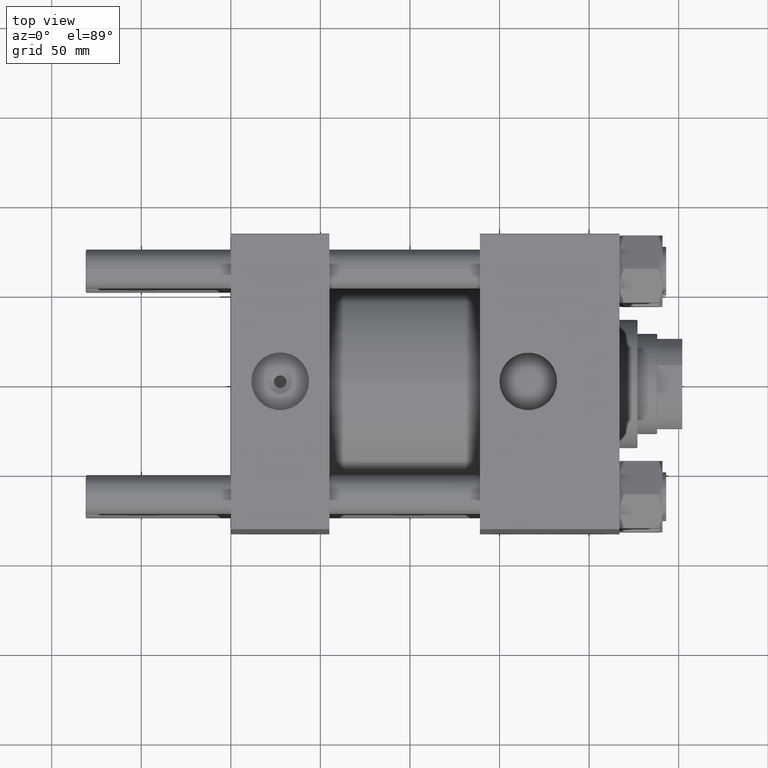
[diagram: clean part render]
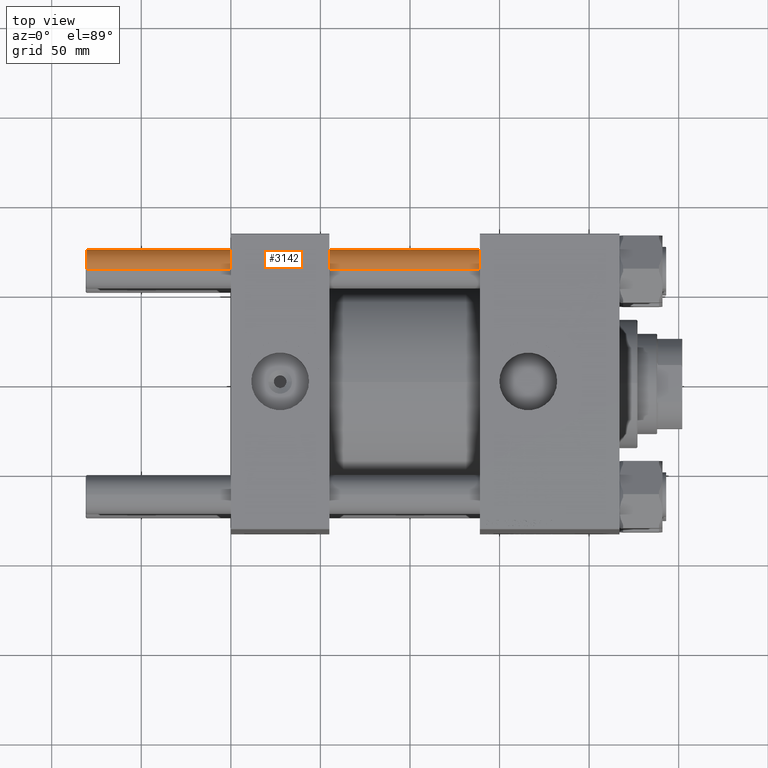
[diagram: same view with one face highlighted and labeled with its STEP entity id]
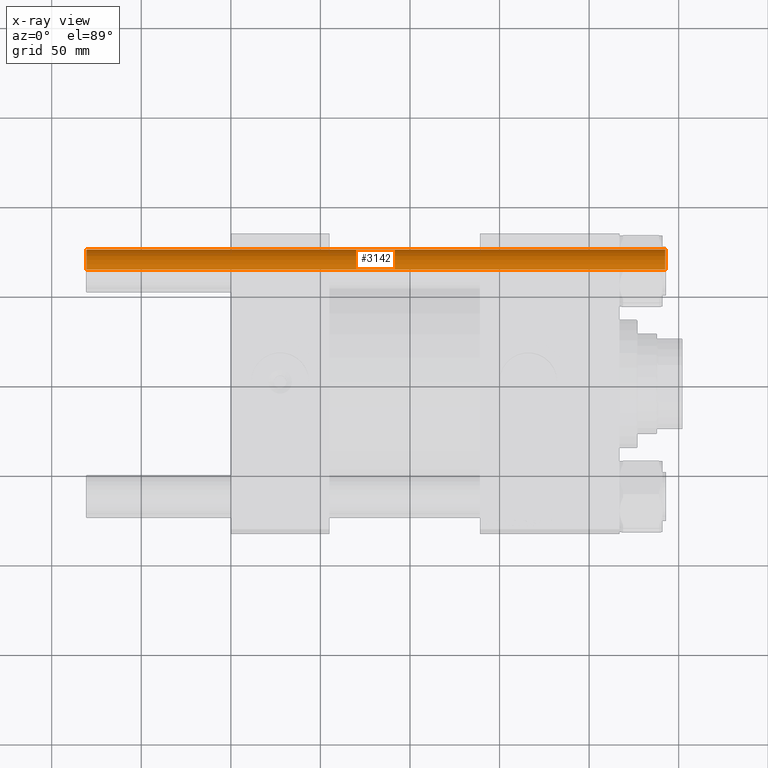
[diagram: x-ray of the same camera — body ghosted, the highlighted face saturated]
A machine part, top view. The second image highlights one B-rep face of the part: STEP entity #3142.
The next image is the same camera in x-ray: the body ghosted, the highlighted face saturated — about 0% of this face is hidden behind the body in this view.
In plain terms, the highlighted cylindrical surface (edge-blend (fillet) strip) has radius 11 mm, axis along (-1, -0, -0).
Its self-contained STEP definition (entity closure, byte-faithful):
#146 = CARTESIAN_POINT ( 'NONE',  ( 11.00000000000000000, 1.347111479062088405E-15, 323.5000000000000000 ) ) ;
#172 = AXIS2_PLACEMENT_3D ( 'NONE', #20867, #35869, #12994 ) ;
#1778 = VERTEX_POINT ( 'NONE', #9391 ) ;
#1916 = CARTESIAN_POINT ( 'NONE',  ( 11.00000000000000000, 1.347111479062088405E-15, 324.0000000000000000 ) ) ;
#2547 = EDGE_LOOP ( 'NONE', ( #38526, #26725, #6122, #39439 ) ) ;
#3142 = ADVANCED_FACE ( 'NONE', ( #35617 ), #9432, .T. ) ;
#6122 = ORIENTED_EDGE ( 'NONE', *, *, #50282, .T. ) ;
#6340 = DIRECTION ( 'NONE',  ( -0.000000000000000000, -0.000000000000000000, 1.000000000000000000 ) ) ;
#6520 = AXIS2_PLACEMENT_3D ( 'NONE', #17540, #6340, #36357 ) ;
#8116 = CIRCLE ( 'NONE', #6520, 11.00000000000000000 ) ;
#9373 = CARTESIAN_POINT ( 'NONE',  ( -11.00000000000000000, 0.000000000000000000, 323.5000000000000000 ) ) ;
#9391 = CARTESIAN_POINT ( 'NONE',  ( 11.00000000000000000, 1.347111479062088405E-15, 0.5000000000000559552 ) ) ;
#9432 = CYLINDRICAL_SURFACE ( 'NONE', #172, 11.00000000000000000 ) ;
#9549 = DIRECTION ( 'NONE',  ( -0.000000000000000000, -0.000000000000000000, -1.000000000000000000 ) ) ;
#12021 = EDGE_CURVE ( 'NONE', #36231, #25958, #43422, .T. ) ;
#12994 = DIRECTION ( 'NONE',  ( -1.000000000000000000, 0.000000000000000000, 0.000000000000000000 ) ) ;
#13308 = DIRECTION ( 'NONE',  ( 0.000000000000000000, 0.000000000000000000, -1.000000000000000000 ) ) ;
#16206 = LINE ( 'NONE', #46970, #37299 ) ;
#17377 = DIRECTION ( 'NONE',  ( 1.000000000000000000, 0.000000000000000000, 0.000000000000000000 ) ) ;
#17540 = CARTESIAN_POINT ( 'NONE',  ( 0.000000000000000000, 0.000000000000000000, 0.5000000000000559552 ) ) ;
#20867 = CARTESIAN_POINT ( 'NONE',  ( 0.000000000000000000, 0.000000000000000000, 324.0000000000000000 ) ) ;
#24024 = EDGE_CURVE ( 'NONE', #36231, #40216, #16206, .T. ) ;
#25958 = VERTEX_POINT ( 'NONE', #146 ) ;
#26725 = ORIENTED_EDGE ( 'NONE', *, *, #29339, .T. ) ;
#29339 = EDGE_CURVE ( 'NONE', #25958, #1778, #29861, .T. ) ;
#29861 = LINE ( 'NONE', #1916, #44961 ) ;
#35617 = FACE_OUTER_BOUND ( 'NONE', #2547, .T. ) ;
#35869 = DIRECTION ( 'NONE',  ( -0.000000000000000000, -0.000000000000000000, -1.000000000000000000 ) ) ;
#36231 = VERTEX_POINT ( 'NONE', #9373 ) ;
#36357 = DIRECTION ( 'NONE',  ( 1.000000000000000000, 0.000000000000000000, 0.000000000000000000 ) ) ;
#37299 = VECTOR ( 'NONE', #47220, 1000.000000000000000 ) ;
#38526 = ORIENTED_EDGE ( 'NONE', *, *, #12021, .T. ) ;
#39439 = ORIENTED_EDGE ( 'NONE', *, *, #24024, .F. ) ;
#40216 = VERTEX_POINT ( 'NONE', #43710 ) ;
#43422 = CIRCLE ( 'NONE', #45052, 11.00000000000000000 ) ;
#43710 = CARTESIAN_POINT ( 'NONE',  ( -11.00000000000000000, 0.000000000000000000, 0.5000000000000559552 ) ) ;
#44961 = VECTOR ( 'NONE', #9549, 1000.000000000000000 ) ;
#45052 = AXIS2_PLACEMENT_3D ( 'NONE', #48138, #13308, #17377 ) ;
#46970 = CARTESIAN_POINT ( 'NONE',  ( -11.00000000000000000, 0.000000000000000000, 324.0000000000000000 ) ) ;
#47220 = DIRECTION ( 'NONE',  ( -0.000000000000000000, -0.000000000000000000, -1.000000000000000000 ) ) ;
#48138 = CARTESIAN_POINT ( 'NONE',  ( 0.000000000000000000, 0.000000000000000000, 323.5000000000000000 ) ) ;
#50282 = EDGE_CURVE ( 'NONE', #1778, #40216, #8116, .T. ) ;